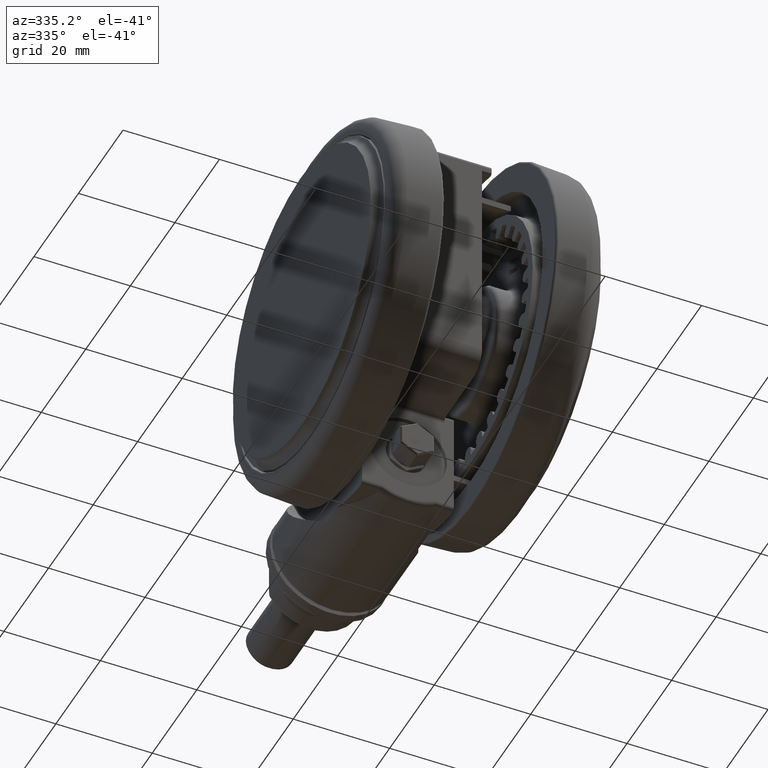
[diagram: clean part render]
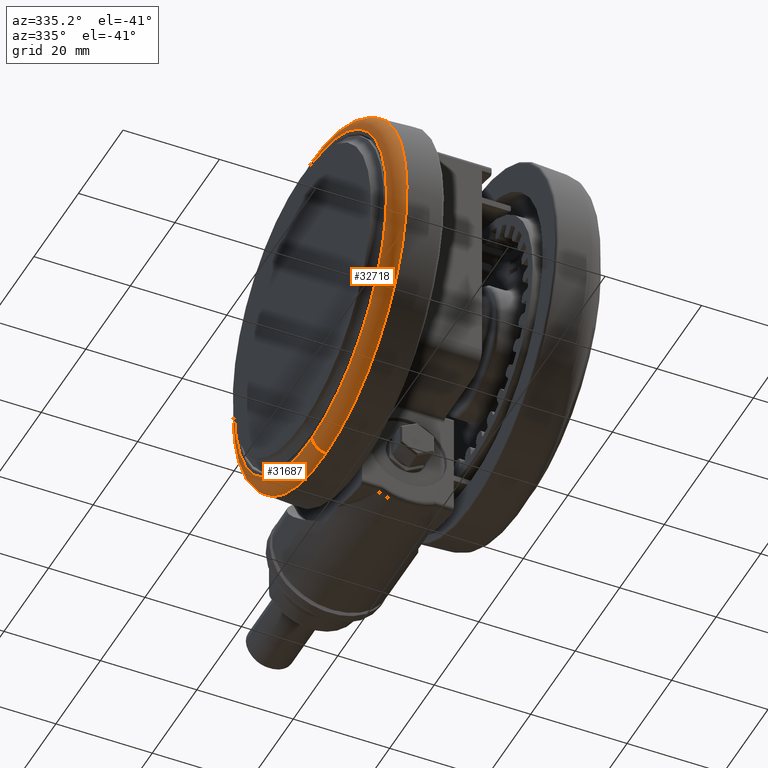
[diagram: same view with one multi-face feature highlighted, each face labeled with its STEP entity id]
A machine part, auxiliary view. The highlighted faces form ONE feature: a constant-radius fillet chain: 2 tangent blend faces with common blend radius 3 mm. The faces share edges in the B-rep.
Their STEP definitions:
[1] entity #32718 (Torus):
#903 = CARTESIAN_POINT ( 'NONE',  ( -3.469446951953614200E-014, -3.469446951953614200E-014, -42.89999999999999100 ) ) ;
#2648 = CARTESIAN_POINT ( 'NONE',  ( -3.469446951953614200E-014, -3.469446951953614200E-014, -43.05700786872880300 ) ) ;
#5747 = ORIENTED_EDGE ( 'NONE', *, *, #47361, .T. ) ;
#6152 = DIRECTION ( 'NONE',  ( 0.9112050619175485800, -0.4119530739487649600, 0.0000000000000000000 ) ) ;
#6817 = CIRCLE ( 'NONE', #52630, 2.999999999999987100 ) ;
#7147 = DIRECTION ( 'NONE',  ( 0.4119530739487650100, 0.9112050619175484600, 0.0000000000000000000 ) ) ;
#8310 = CARTESIAN_POINT ( 'NONE',  ( -15.29428867885000400, -33.82966202682013800, -43.05700786872880300 ) ) ;
#12051 = AXIS2_PLACEMENT_3D ( 'NONE', #18249, #49549, #22769 ) ;
#12964 = VERTEX_POINT ( 'NONE', #45790 ) ;
#13863 = ORIENTED_EDGE ( 'NONE', *, *, #35768, .F. ) ;
#14100 = DIRECTION ( 'NONE',  ( -0.9112050619175485800, 0.4119530739487650700, 0.0000000000000000000 ) ) ;
#18249 = CARTESIAN_POINT ( 'NONE',  ( -3.469446951953614200E-014, -3.469446951953614200E-014, -45.89999999999998400 ) ) ;
#18647 = CIRCLE ( 'NONE', #35371, 2.999999999999987100 ) ;
#19784 = VERTEX_POINT ( 'NONE', #31467 ) ;
#20400 = CARTESIAN_POINT ( 'NONE',  ( 15.29428867884993800, 33.82966202682006700, -43.05700786872880300 ) ) ;
#21413 = VERTEX_POINT ( 'NONE', #20400 ) ;
#22769 = DIRECTION ( 'NONE',  ( 0.4119530739487650700, 0.9112050619175485800, 0.0000000000000000000 ) ) ;
#27717 = DIRECTION ( 'NONE',  ( 0.0000000000000000000, 0.0000000000000000000, -1.000000000000000000 ) ) ;
#29159 = FACE_OUTER_BOUND ( 'NONE', #42551, .T. ) ;
#30240 = CIRCLE ( 'NONE', #12051, 34.13039991264668100 ) ;
#31467 = CARTESIAN_POINT ( 'NONE',  ( 14.06012315911542700, 31.09979316567387600, -45.89999999999998400 ) ) ;
#32230 = DIRECTION ( 'NONE',  ( 0.4119530739487650100, 0.9112050619175484600, 0.0000000000000000000 ) ) ;
#32718 = ADVANCED_FACE ( 'NONE', ( #29159 ), #39658, .T. ) ;
#32961 = CARTESIAN_POINT ( 'NONE',  ( -14.06012315911549300, -31.09979316567394700, -42.89999999999999100 ) ) ;
#33939 = DIRECTION ( 'NONE',  ( 0.0000000000000000000, 0.0000000000000000000, -1.000000000000000000 ) ) ;
#34460 = VERTEX_POINT ( 'NONE', #8310 ) ;
#35371 = AXIS2_PLACEMENT_3D ( 'NONE', #40901, #14100, #45386 ) ;
#35768 = EDGE_CURVE ( 'NONE', #12964, #19784, #30240, .T. ) ;
#37467 = DIRECTION ( 'NONE',  ( 0.4119530739487651800, 0.9112050619175484600, 0.0000000000000000000 ) ) ;
#39658 = TOROIDAL_SURFACE ( 'NONE', #55731, 34.13039991264668100, 2.999999999999988000 ) ;
#40512 = ORIENTED_EDGE ( 'NONE', *, *, #43696, .T. ) ;
#40901 = CARTESIAN_POINT ( 'NONE',  ( 14.06012315911542700, 31.09979316567387600, -42.89999999999999100 ) ) ;
#42551 = EDGE_LOOP ( 'NONE', ( #52154, #40512, #5747, #13863 ) ) ;
#42875 = CIRCLE ( 'NONE', #44265, 37.12628851691039200 ) ;
#43696 = EDGE_CURVE ( 'NONE', #34460, #21413, #42875, .T. ) ;
#44265 = AXIS2_PLACEMENT_3D ( 'NONE', #2648, #33939, #7147 ) ;
#45386 = DIRECTION ( 'NONE',  ( -0.4119530739487651800, -0.9112050619175484600, 0.0000000000000000000 ) ) ;
#45790 = CARTESIAN_POINT ( 'NONE',  ( -14.06012315911549300, -31.09979316567394700, -45.89999999999998400 ) ) ;
#47361 = EDGE_CURVE ( 'NONE', #21413, #19784, #18647, .T. ) ;
#49549 = DIRECTION ( 'NONE',  ( 0.0000000000000000000, 0.0000000000000000000, -1.000000000000000000 ) ) ;
#52154 = ORIENTED_EDGE ( 'NONE', *, *, #54287, .F. ) ;
#52630 = AXIS2_PLACEMENT_3D ( 'NONE', #32961, #6152, #37467 ) ;
#54287 = EDGE_CURVE ( 'NONE', #34460, #12964, #6817, .T. ) ;
#55731 = AXIS2_PLACEMENT_3D ( 'NONE', #903, #27717, #32230 ) ;
[2] entity #31687 (Torus):
#949 = DIRECTION ( 'NONE',  ( 0.0000000000000000000, 0.0000000000000000000, -1.000000000000000000 ) ) ;
#1540 = DIRECTION ( 'NONE',  ( 0.0000000000000000000, 0.0000000000000000000, -1.000000000000000000 ) ) ;
#3225 = DIRECTION ( 'NONE',  ( 0.0000000000000000000, 0.0000000000000000000, -1.000000000000000000 ) ) ;
#4247 = CIRCLE ( 'NONE', #39210, 37.12628851691039200 ) ;
#6152 = DIRECTION ( 'NONE',  ( 0.9112050619175485800, -0.4119530739487649600, 0.0000000000000000000 ) ) ;
#6817 = CIRCLE ( 'NONE', #52630, 2.999999999999987100 ) ;
#7736 = CARTESIAN_POINT ( 'NONE',  ( -3.469446951953614200E-014, -3.469446951953614200E-014, -42.89999999999999100 ) ) ;
#8310 = CARTESIAN_POINT ( 'NONE',  ( -15.29428867885000400, -33.82966202682013800, -43.05700786872880300 ) ) ;
#12002 = FACE_OUTER_BOUND ( 'NONE', #29131, .T. ) ;
#12964 = VERTEX_POINT ( 'NONE', #45790 ) ;
#14100 = DIRECTION ( 'NONE',  ( -0.9112050619175485800, 0.4119530739487650700, 0.0000000000000000000 ) ) ;
#14424 = EDGE_CURVE ( 'NONE', #21413, #34460, #4247, .T. ) ;
#16746 = DIRECTION ( 'NONE',  ( 0.4119530739487650100, 0.9112050619175484600, 0.0000000000000000000 ) ) ;
#18647 = CIRCLE ( 'NONE', #35371, 2.999999999999987100 ) ;
#19784 = VERTEX_POINT ( 'NONE', #31467 ) ;
#20400 = CARTESIAN_POINT ( 'NONE',  ( 15.29428867884993800, 33.82966202682006700, -43.05700786872880300 ) ) ;
#21413 = VERTEX_POINT ( 'NONE', #20400 ) ;
#25979 = AXIS2_PLACEMENT_3D ( 'NONE', #28352, #1540, #32843 ) ;
#27763 = CARTESIAN_POINT ( 'NONE',  ( -3.469446951953614200E-014, -3.469446951953614200E-014, -43.05700786872880300 ) ) ;
#28352 = CARTESIAN_POINT ( 'NONE',  ( -3.469446951953614200E-014, -3.469446951953614200E-014, -45.89999999999998400 ) ) ;
#29131 = EDGE_LOOP ( 'NONE', ( #30514, #49915, #57158, #53002 ) ) ;
#29800 = EDGE_CURVE ( 'NONE', #19784, #12964, #43725, .T. ) ;
#30514 = ORIENTED_EDGE ( 'NONE', *, *, #14424, .T. ) ;
#31467 = CARTESIAN_POINT ( 'NONE',  ( 14.06012315911542700, 31.09979316567387600, -45.89999999999998400 ) ) ;
#31687 = ADVANCED_FACE ( 'NONE', ( #12002 ), #55393, .T. ) ;
#32274 = DIRECTION ( 'NONE',  ( 0.4119530739487650100, 0.9112050619175484600, 0.0000000000000000000 ) ) ;
#32843 = DIRECTION ( 'NONE',  ( 0.4119530739487650700, 0.9112050619175485800, 0.0000000000000000000 ) ) ;
#32961 = CARTESIAN_POINT ( 'NONE',  ( -14.06012315911549300, -31.09979316567394700, -42.89999999999999100 ) ) ;
#34460 = VERTEX_POINT ( 'NONE', #8310 ) ;
#35371 = AXIS2_PLACEMENT_3D ( 'NONE', #40901, #14100, #45386 ) ;
#37467 = DIRECTION ( 'NONE',  ( 0.4119530739487651800, 0.9112050619175484600, 0.0000000000000000000 ) ) ;
#39210 = AXIS2_PLACEMENT_3D ( 'NONE', #27763, #949, #32274 ) ;
#40901 = CARTESIAN_POINT ( 'NONE',  ( 14.06012315911542700, 31.09979316567387600, -42.89999999999999100 ) ) ;
#43725 = CIRCLE ( 'NONE', #25979, 34.13039991264668100 ) ;
#45386 = DIRECTION ( 'NONE',  ( -0.4119530739487651800, -0.9112050619175484600, 0.0000000000000000000 ) ) ;
#45790 = CARTESIAN_POINT ( 'NONE',  ( -14.06012315911549300, -31.09979316567394700, -45.89999999999998400 ) ) ;
#47361 = EDGE_CURVE ( 'NONE', #21413, #19784, #18647, .T. ) ;
#49915 = ORIENTED_EDGE ( 'NONE', *, *, #54287, .T. ) ;
#52630 = AXIS2_PLACEMENT_3D ( 'NONE', #32961, #6152, #37467 ) ;
#53002 = ORIENTED_EDGE ( 'NONE', *, *, #47361, .F. ) ;
#54188 = AXIS2_PLACEMENT_3D ( 'NONE', #7736, #3225, #16746 ) ;
#54287 = EDGE_CURVE ( 'NONE', #34460, #12964, #6817, .T. ) ;
#55393 = TOROIDAL_SURFACE ( 'NONE', #54188, 34.13039991264668100, 2.999999999999988000 ) ;
#57158 = ORIENTED_EDGE ( 'NONE', *, *, #29800, .F. ) ;